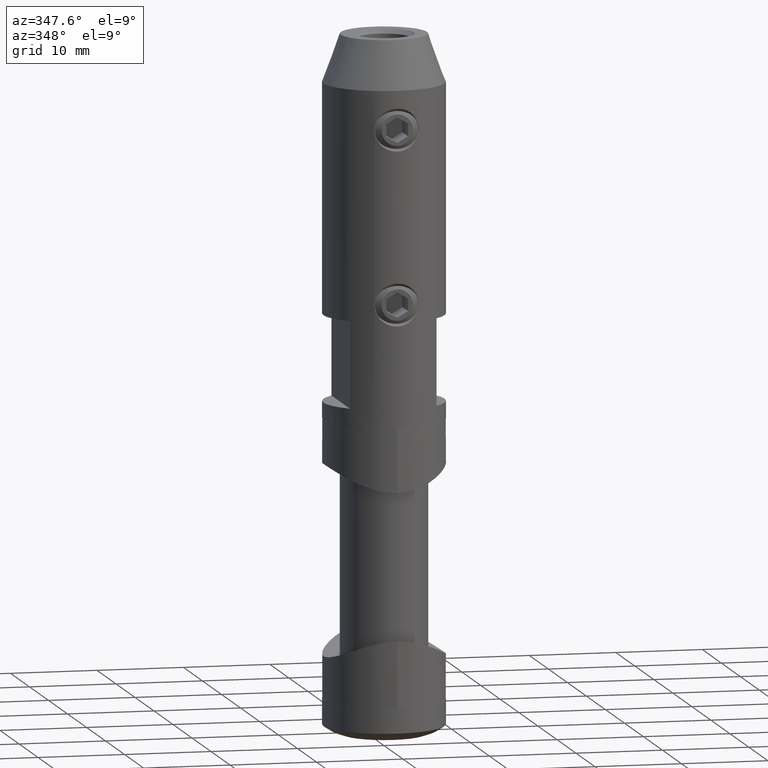
[diagram: clean part render]
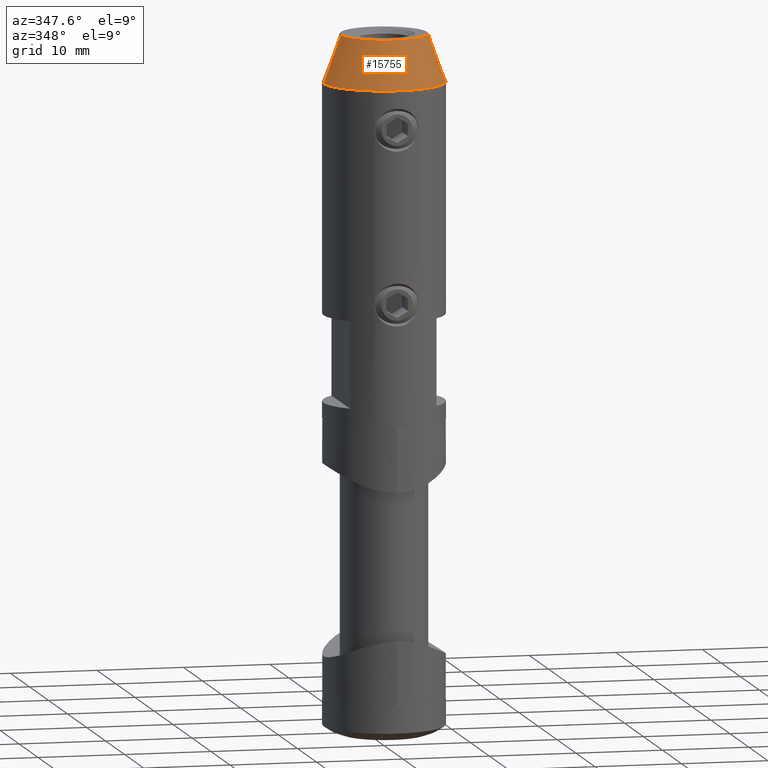
[diagram: same view with one face highlighted and labeled with its STEP entity id]
A machine part, auxiliary view. The second image highlights one B-rep face of the part: STEP entity #15755.
In plain terms, the highlighted conical surface has half-angle 19.983 deg.
Its self-contained STEP definition (entity closure, byte-faithful):
#2163 = CONICAL_SURFACE ( 'NONE', #19134, 4.999999999999997335, 0.3487710035839073908 ) ;
#2225 = EDGE_LOOP ( 'NONE', ( #11390, #20211, #3868, #18048 ) ) ;
#2256 = DIRECTION ( 'NONE',  ( -0.000000000000000000, -0.000000000000000000, -1.000000000000000000 ) ) ;
#2531 = DIRECTION ( 'NONE',  ( -0.3417430630867047681, 0.000000000000000000, -0.9397934234884369742 ) ) ;
#3032 = VECTOR ( 'NONE', #9763, 999.9999999999998863 ) ;
#3136 = DIRECTION ( 'NONE',  ( -0.000000000000000000, -0.000000000000000000, -1.000000000000000000 ) ) ;
#3868 = ORIENTED_EDGE ( 'NONE', *, *, #8819, .T. ) ;
#4021 = CARTESIAN_POINT ( 'NONE',  ( -4.999999999999997335, 0.000000000000000000, 22.00000000000000000 ) ) ;
#4354 = DIRECTION ( 'NONE',  ( -0.000000000000000000, -0.000000000000000000, -1.000000000000000000 ) ) ;
#4385 = EDGE_CURVE ( 'NONE', #15437, #13530, #9659, .T. ) ;
#4427 = DIRECTION ( 'NONE',  ( -1.000000000000000000, 0.000000000000000000, 0.000000000000000000 ) ) ;
#4677 = FACE_OUTER_BOUND ( 'NONE', #2225, .T. ) ;
#4798 = CARTESIAN_POINT ( 'NONE',  ( -4.999999999999997335, 0.000000000000000000, 22.00000000000000000 ) ) ;
#5191 = DIRECTION ( 'NONE',  ( -1.000000000000000000, 0.000000000000000000, 0.000000000000000000 ) ) ;
#5226 = CARTESIAN_POINT ( 'NONE',  ( -6.999999999999999112, 8.572527594031472204E-16, 16.50000000000000000 ) ) ;
#5518 = VERTEX_POINT ( 'NONE', #4798 ) ;
#6044 = EDGE_CURVE ( 'NONE', #15518, #15437, #7214, .T. ) ;
#6655 = CARTESIAN_POINT ( 'NONE',  ( 4.999999999999997335, 6.123233995736763324E-16, 22.00000000000000000 ) ) ;
#7165 = VECTOR ( 'NONE', #2531, 999.9999999999998863 ) ;
#7214 = LINE ( 'NONE', #6655, #3032 ) ;
#8819 = EDGE_CURVE ( 'NONE', #5518, #13530, #15419, .T. ) ;
#9000 = EDGE_CURVE ( 'NONE', #15518, #5518, #15191, .T. ) ;
#9659 = CIRCLE ( 'NONE', #14302, 6.999999999999999112 ) ;
#9763 = DIRECTION ( 'NONE',  ( 0.3417430630867047681, 4.185145483399450380E-17, -0.9397934234884369742 ) ) ;
#11389 = CARTESIAN_POINT ( 'NONE',  ( 0.000000000000000000, 0.000000000000000000, 16.50000000000000000 ) ) ;
#11390 = ORIENTED_EDGE ( 'NONE', *, *, #6044, .F. ) ;
#12480 = DIRECTION ( 'NONE',  ( -1.000000000000000000, 0.000000000000000000, 0.000000000000000000 ) ) ;
#13530 = VERTEX_POINT ( 'NONE', #5226 ) ;
#14302 = AXIS2_PLACEMENT_3D ( 'NONE', #11389, #2256, #5191 ) ;
#15191 = CIRCLE ( 'NONE', #17121, 4.999999999999997335 ) ;
#15419 = LINE ( 'NONE', #4021, #7165 ) ;
#15437 = VERTEX_POINT ( 'NONE', #18327 ) ;
#15518 = VERTEX_POINT ( 'NONE', #18459 ) ;
#15755 = ADVANCED_FACE ( 'NONE', ( #4677 ), #2163, .T. ) ;
#17079 = CARTESIAN_POINT ( 'NONE',  ( 0.000000000000000000, 0.000000000000000000, 22.00000000000000000 ) ) ;
#17121 = AXIS2_PLACEMENT_3D ( 'NONE', #20086, #4354, #4427 ) ;
#18048 = ORIENTED_EDGE ( 'NONE', *, *, #4385, .F. ) ;
#18327 = CARTESIAN_POINT ( 'NONE',  ( 6.999999999999999112, 0.000000000000000000, 16.50000000000000000 ) ) ;
#18459 = CARTESIAN_POINT ( 'NONE',  ( 4.999999999999997335, 7.347880794884117764E-16, 22.00000000000000000 ) ) ;
#19134 = AXIS2_PLACEMENT_3D ( 'NONE', #17079, #3136, #12480 ) ;
#20086 = CARTESIAN_POINT ( 'NONE',  ( 0.000000000000000000, 0.000000000000000000, 22.00000000000000000 ) ) ;
#20211 = ORIENTED_EDGE ( 'NONE', *, *, #9000, .T. ) ;